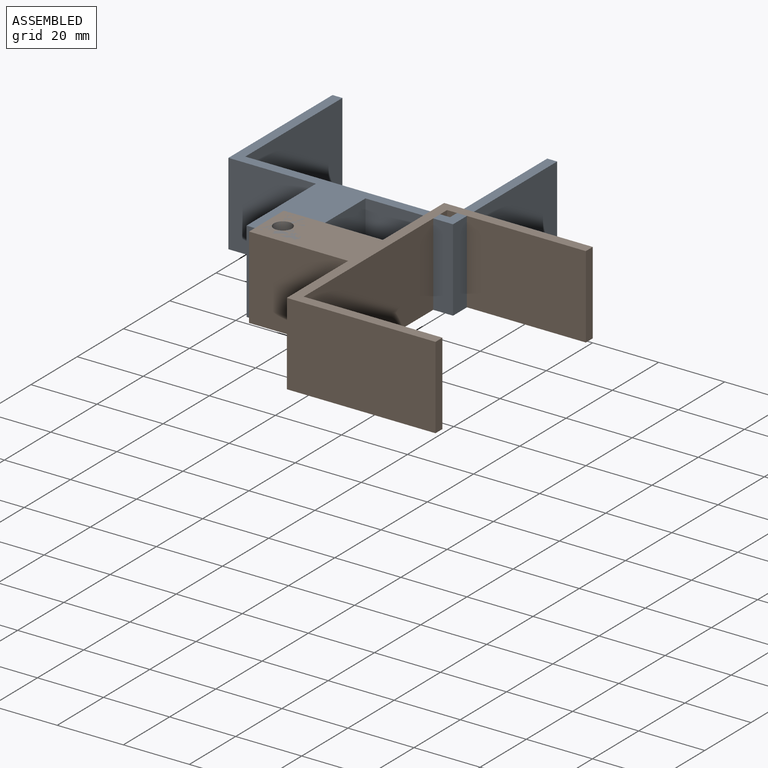
[diagram: assembled view]
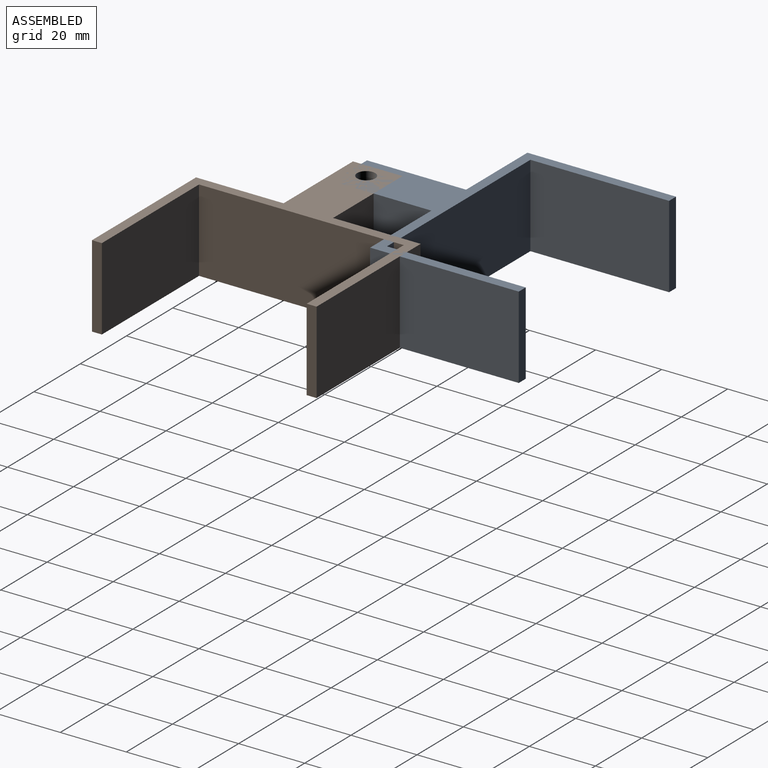
[diagram: assembled view, second angle]
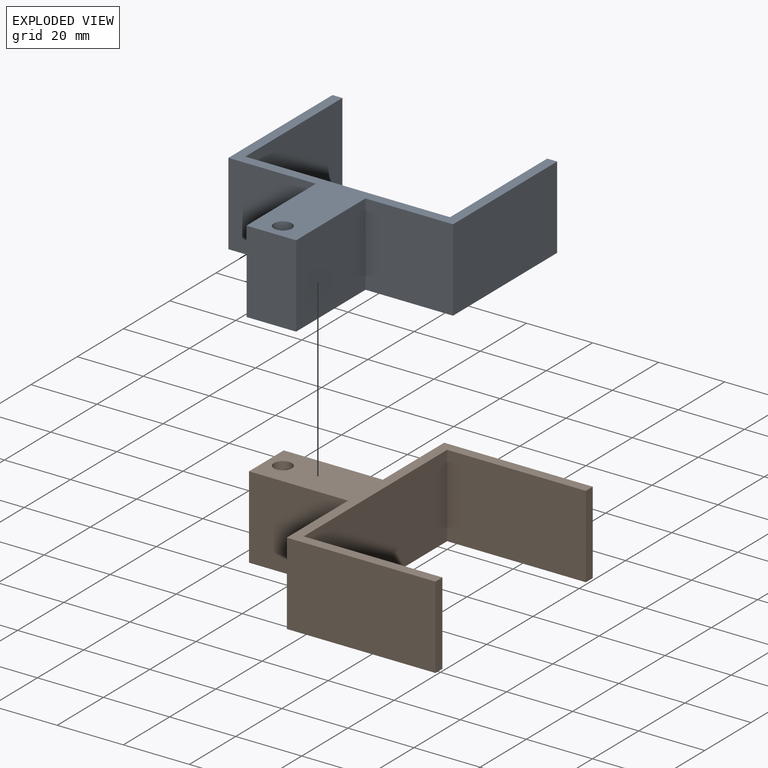
[diagram: exploded view]
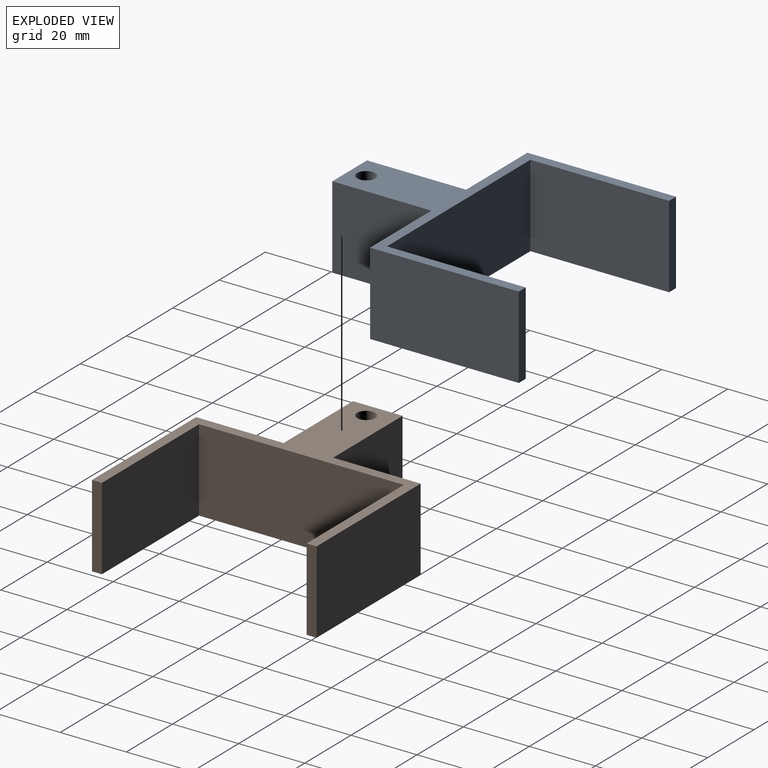
[diagram: exploded view, second angle]
ASSEMBLY  parts=2 mates=2
PART A: 15 faces, bbox 75x68x25 mm
  f0: plane 42x25mm, normal (0,1,0), area 1050mm2, adj f1,f11,f13,f14
  f1: plane 62x25mm, normal (1,0,0), area 1550mm2, adj f0,f2,f13,f14
  f2: plane 42x25mm, normal (0,-1,0), area 1050mm2, adj f1,f3,f13,f14
  f3: plane 25x3mm, normal (1,0,0), area 75mm2, adj f2,f4,f13,f14
  f4: plane 45x25mm, normal (0,1,0), area 1125mm2, adj f3,f5,f13,f14
  f5: plane 26.5x25mm, normal (-1,0,0), area 662.5mm2, adj f4,f6,f13,f14
  f6: plane 30x25mm, normal (0,1,0), area 750mm2, adj f5,f7,f13,f14
  f7: plane 25x15mm, normal (-1,0,0), area 375mm2, adj f6,f8,f13,f14
  f8: plane 30x25mm, normal (0,-1,0), area 750mm2, adj f7,f9,f13,f14
  f9: plane 26.5x25mm, normal (-1,0,0), area 662.5mm2, adj f8,f10,f13,f14
  f10: plane 45x25mm, normal (0,-1,0), area 1125mm2, adj f9,f11,f13,f14
  f11: plane 25x3mm, normal (1,0,0), area 75mm2, adj f0,f10,f13,f14
  f12: cylinder r=2.73mm len=25mm, axis (0,0,-1), area 428.9mm2, adj f13,f14
  f13: plane 75x68mm, normal (0,0,1), area 882.6mm2, adj f0,f1,f2,f3,f4,f5,f6,f7
  f14: plane 75x68mm, normal (0,0,-1), area 882.6mm2, adj f0,f1,f2,f3,f4,f5,f6,f7
PART B: same geometry as A
PLACE A rot(axis=(0,0,1),90deg) t=(1,57,-6.04)mm
PLACE B t=(0,0,-6.04)mm
MATE cylindrical A.f12 <-> B.f12  axis (0,0,-1) through (-28,29,18.96)mm
MATE planar B.f13 <-> A.f13  axis (0,0,1) through (-18,36.5,18.96)mm
